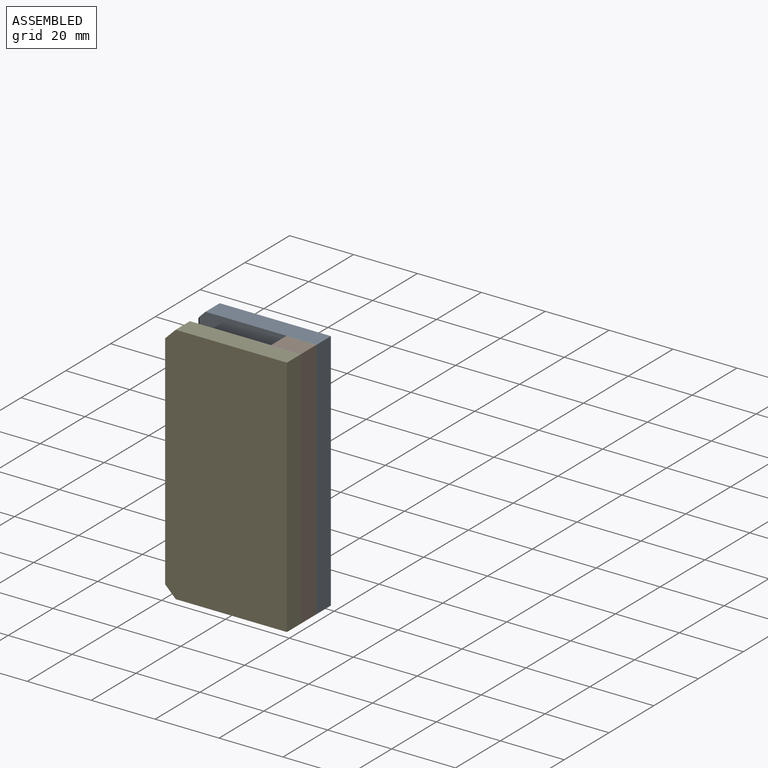
[diagram: assembled view]
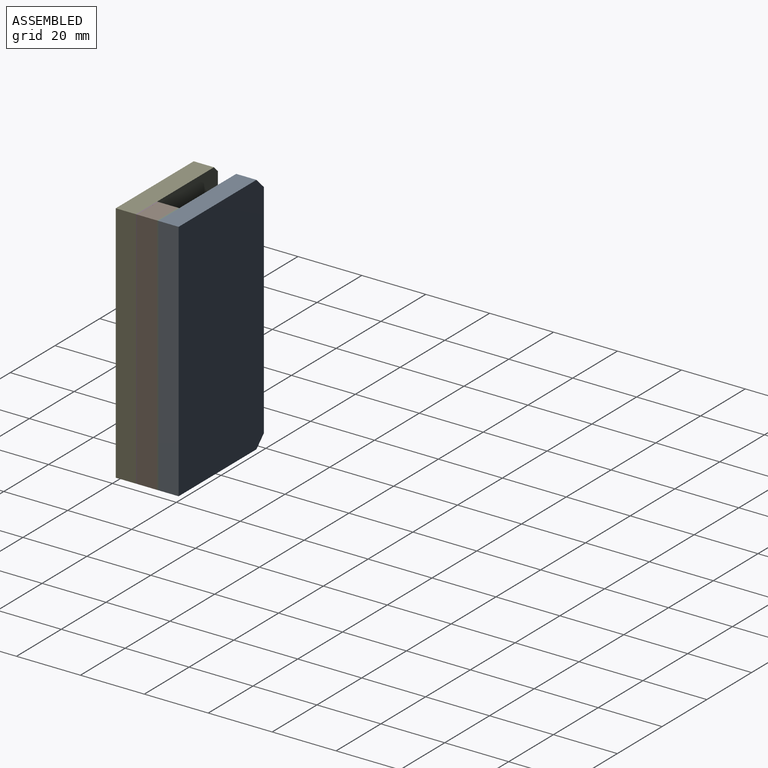
[diagram: assembled view, second angle]
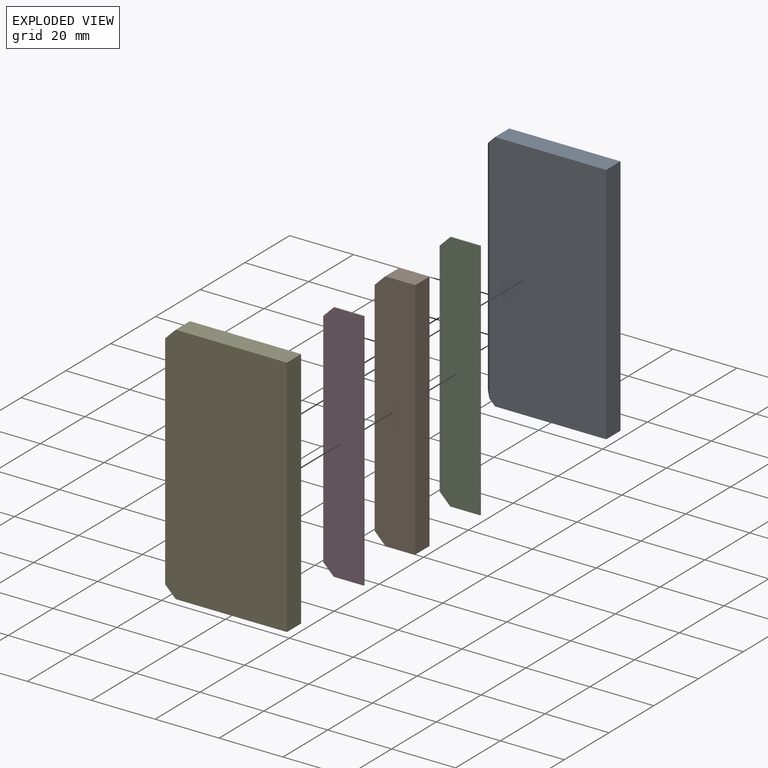
[diagram: exploded view]
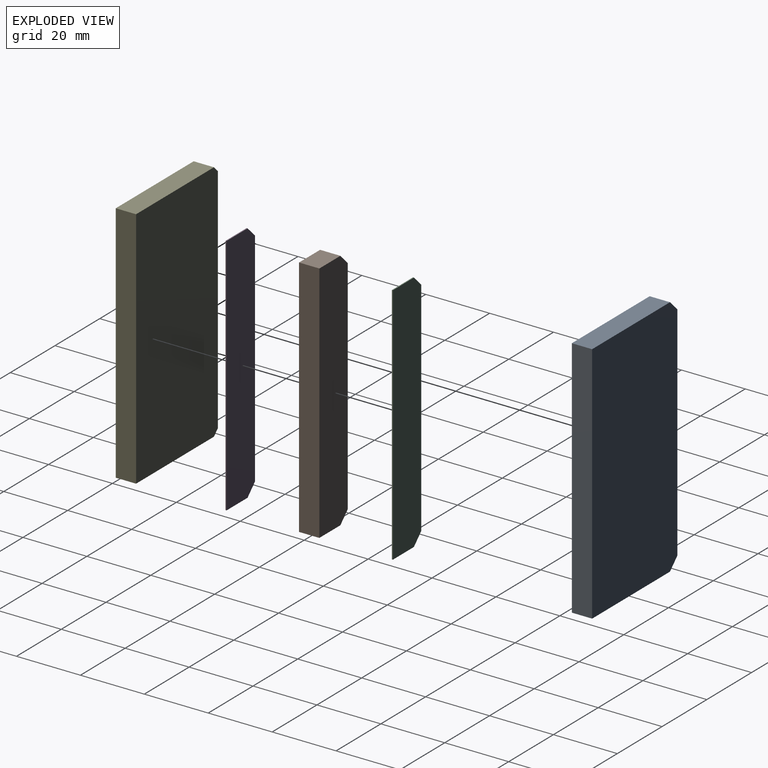
[diagram: exploded view, second angle]
ASSEMBLY  parts=5 mates=4
PART A: 9 faces, bbox 38.1x6.4x76.2 mm
  f0: plane 76.2x6.35mm, normal (1,0,0), area 483.9mm2, adj f1,f3,f4,f5
  f1: plane 34.8x6.35mm, normal (0,0,1), area 221mm2, adj f0,f4,f5,f7
  f2: plane 69.6x4.83mm, normal (-1,0,0), area 335.9mm2, adj f4,f6,f7,f8
  f3: plane 34.8x6.35mm, normal (0,0,-1), area 221mm2, adj f0,f4,f5,f6
  f4: plane 76.2x38.1mm, normal (0,1,0), area 2892.3mm2, adj f0,f1,f2,f3,f6,f7
  f5: plane 76.2x36.58mm, normal (0,-1,0), area 2783.9mm2, adj f0,f1,f3,f6,f7,f8
  f6: plane 6.35x3.3mm, normal (-0.71,0,-0.71), area 28mm2, adj f2,f3,f4,f5,f8
  f7: plane 6.35x3.3mm, normal (-0.71,0,0.71), area 28mm2, adj f1,f2,f4,f5,f8
  f8: plane 72.64x1.52mm, normal (-0.71,-0.71,0), area 153.3mm2, adj f2,f5,f6,f7
PART B: 8 faces, bbox 12.7x6.4x76.2 mm
  f0: plane 76.2x6.35mm, normal (1,0,0), area 483.9mm2, adj f1,f3,f4,f5
  f1: plane 9.4x6.35mm, normal (0,0,1), area 59.7mm2, adj f0,f4,f5,f7
  f2: plane 69.6x6.35mm, normal (-1,0,0), area 441.9mm2, adj f4,f5,f6,f7
  f3: plane 9.4x6.35mm, normal (0,0,-1), area 59.7mm2, adj f0,f4,f5,f6
  f4: plane 76.2x12.7mm, normal (0,-1,0), area 956.8mm2, adj f0,f1,f2,f3,f6,f7
  f5: plane 76.2x12.7mm, normal (0,1,0), area 956.8mm2, adj f0,f1,f2,f3,f6,f7
  f6: plane 6.35x3.3mm, normal (-0.71,0,-0.71), area 29.7mm2, adj f2,f3,f4,f5
  f7: plane 6.35x3.3mm, normal (-0.71,0,0.71), area 29.7mm2, adj f1,f2,f4,f5
PART C: 8 faces, bbox 12.7x0.3x76.2 mm
  f0: plane 9.4x0.3mm, normal (0,0,1), area 2.9mm2, adj f3,f4,f5,f7
  f1: plane 69.6x0.3mm, normal (-1,0,0), area 21.2mm2, adj f4,f5,f6,f7
  f2: plane 9.4x0.3mm, normal (0,0,-1), area 2.9mm2, adj f3,f4,f5,f6
  f3: plane 76.2x0.3mm, normal (1,0,0), area 23.2mm2, adj f0,f2,f4,f5
  f4: plane 76.2x12.7mm, normal (0,-1,0), area 956.8mm2, adj f0,f1,f2,f3,f6,f7
  f5: plane 76.2x12.7mm, normal (0,1,0), area 956.8mm2, adj f0,f1,f2,f3,f6,f7
  f6: plane 3.3x3.3mm, normal (-0.71,0,-0.71), area 1.4mm2, adj f1,f2,f4,f5
  f7: plane 3.3x3.3mm, normal (-0.71,0,0.71), area 1.4mm2, adj f0,f1,f4,f5
PART D: same geometry as C
PART E: same geometry as A
PLACE A t=(-0.07,-6.35,0)mm
PLACE B rot(axis=(1,0,0),180deg) t=(-0.07,-13.31,0)mm
PLACE C rot(axis=(1,0,0),180deg) t=(-0.07,-6.65,0)mm
PLACE D rot(axis=(1,0,0),180deg) t=(-0.07,-13.31,0)mm
PLACE E rot(axis=(1,0,0),180deg) t=(-0.07,-13.31,0)mm
MATE fastened D.f4 <-> B.f5  axis (0,1,0) through (18.98,-13,0)mm
MATE fastened B.f4 <-> C.f5  axis (0,1,0) through (18.98,-6.65,0)mm
MATE fastened E.f5 <-> D.f5  axis (0,1,0) through (18.98,-13.31,0)mm
MATE fastened C.f4 <-> A.f5  axis (0,1,0) through (18.98,-6.35,0)mm
